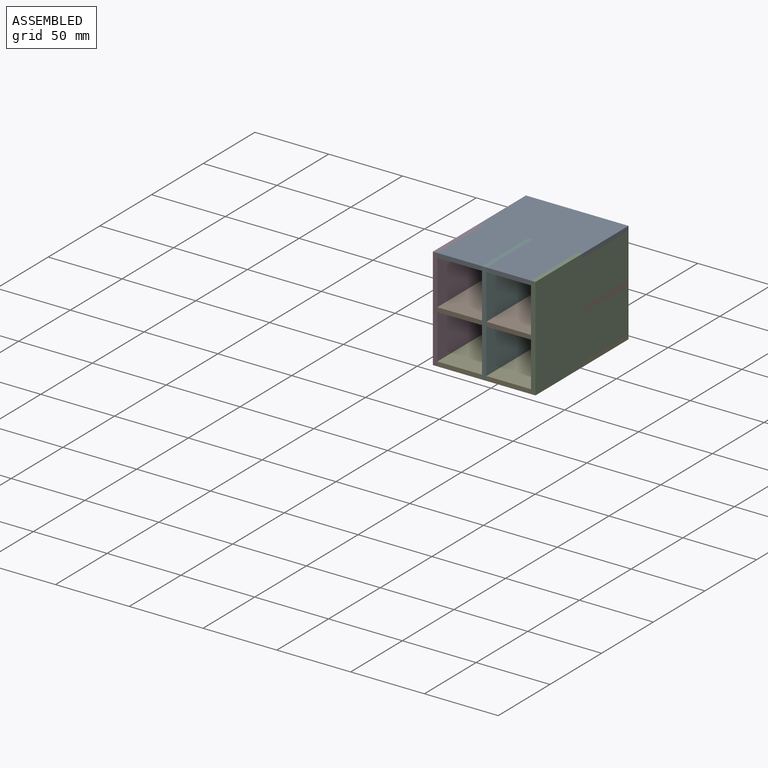
[diagram: assembled view]
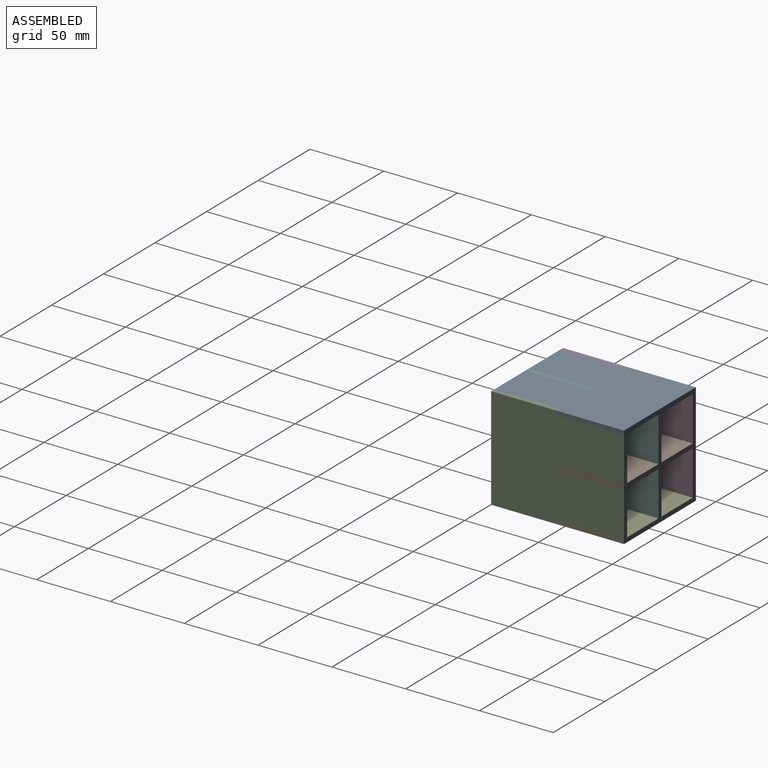
[diagram: assembled view, second angle]
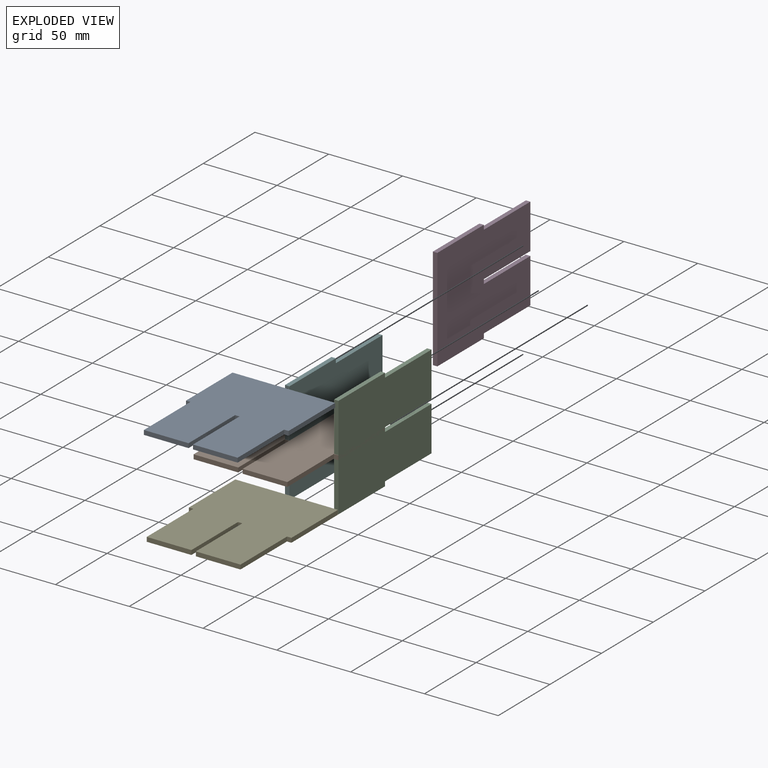
[diagram: exploded view]
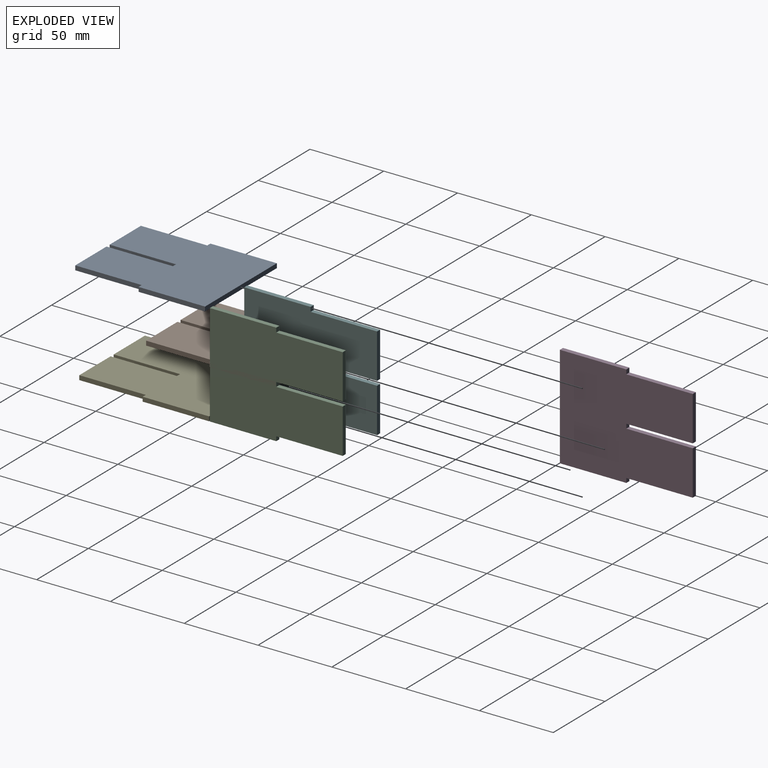
[diagram: exploded view, second angle]
ASSEMBLY  parts=6 mates=5
PART A: 14 faces, bbox 69.5x90x3 mm
  f0: plane 45x3mm, normal (1,0,0), area 135mm2, adj f1,f11,f12,f13
  f1: plane 3x3mm, normal (0,-1,0), area 9mm2, adj f0,f2,f12,f13
  f2: plane 45x3mm, normal (1,0,0), area 135mm2, adj f1,f3,f12,f13
  f3: plane 69.5x3mm, normal (0,1,0), area 208.5mm2, adj f2,f4,f12,f13
  f4: plane 45x3mm, normal (-1,0,0), area 135mm2, adj f3,f5,f12,f13
  f5: plane 3x3mm, normal (0,-1,0), area 9mm2, adj f4,f6,f12,f13
  f6: plane 45x3mm, normal (-1,0,0), area 135mm2, adj f5,f7,f12,f13
  f7: plane 30.25x3mm, normal (0,-1,0), area 90.8mm2, adj f6,f8,f12,f13
  f8: plane 45x3mm, normal (1,0,0), area 135mm2, adj f7,f9,f12,f13
  f9: plane 3x3mm, normal (0,-1,0), area 9mm2, adj f8,f10,f12,f13
  f10: plane 45x3mm, normal (-1,0,0), area 135mm2, adj f9,f11,f12,f13
  f11: plane 30.25x3mm, normal (0,-1,0), area 90.8mm2, adj f0,f10,f12,f13
  f12: plane 90x69.5mm, normal (0,0,1), area 5850mm2, adj f0,f1,f2,f3,f4,f5,f6,f7
  f13: plane 90x69.5mm, normal (0,0,-1), area 5850mm2, adj f0,f1,f2,f3,f4,f5,f6,f7
PART B: same geometry as A
PART C: same geometry as A
PART D: same geometry as A
PART E: same geometry as A
PART F: same geometry as A
PLACE A t=(-6.47,-2.29,33.92)mm
PLACE B t=(-6.47,-2.29,0.67)mm
PLACE C rot(axis=(-0.71,0,-0.71),180deg) t=(25.28,-2.29,2.17)mm
PLACE D rot(axis=(0.71,0,0.71),180deg) t=(-41.22,-2.29,2.17)mm
PLACE E t=(-6.47,-2.29,-32.58)mm
PLACE F rot(axis=(0.71,0,0.71),180deg) t=(-7.97,-2.29,2.17)mm
MATE fastened F.f5 <-> E.f9  axis (0,1,0) through (-6.47,-2.29,-31.08)mm
MATE fastened C.f1 <-> A.f1  axis (0,1,0) through (26.78,-2.29,35.42)mm
MATE fastened E.f5 <-> D.f5  axis (0,-1,0) through (-39.72,-2.29,-31.08)mm
MATE fastened A.f5 <-> D.f1  axis (0,-1,0) through (-39.72,-2.29,35.42)mm
MATE fastened D.f9 <-> B.f5  axis (0,1,0) through (-39.72,-2.29,2.17)mm
